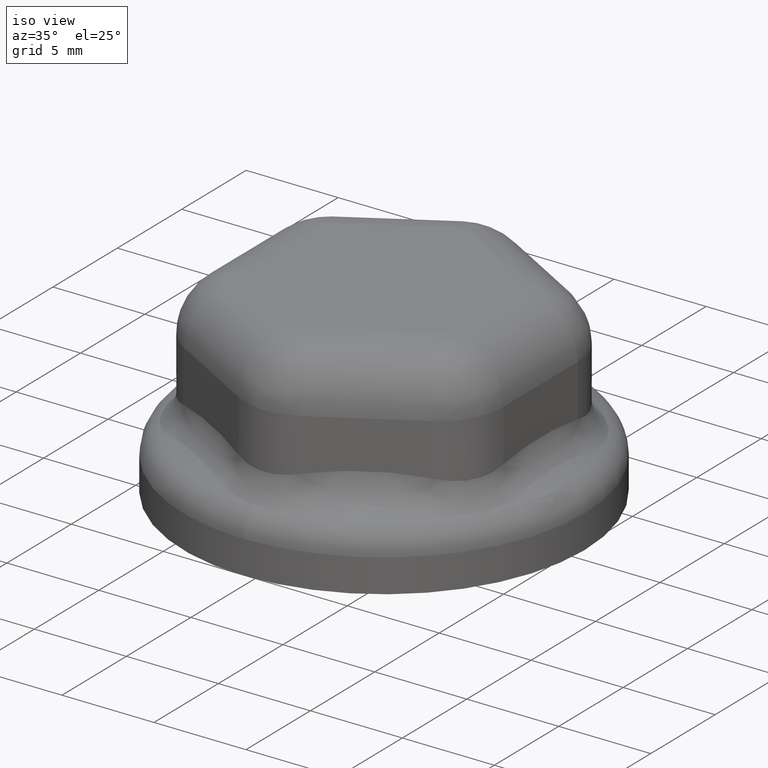
[diagram: clean part render]
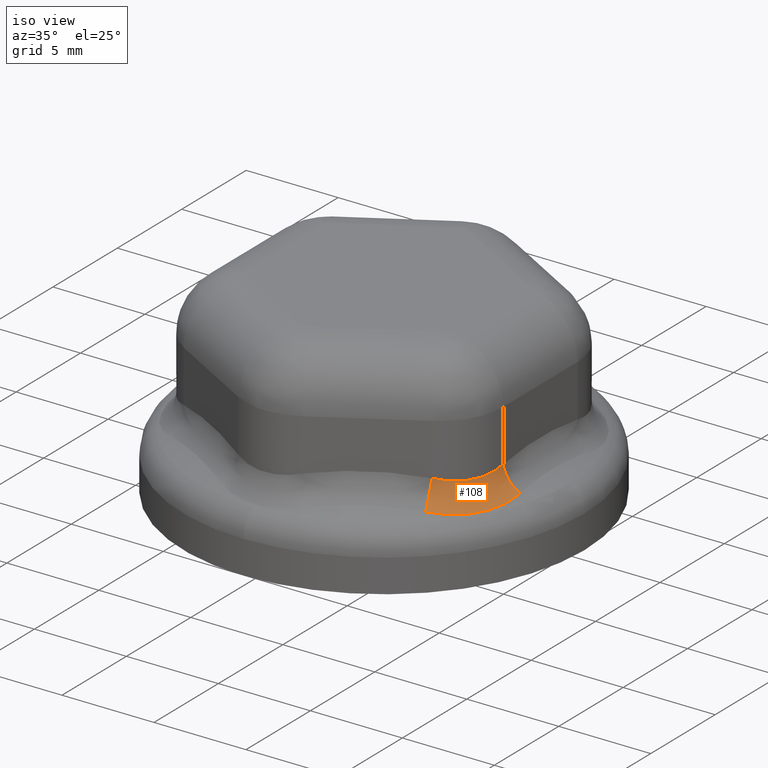
[diagram: same view with one face highlighted and labeled with its STEP entity id]
A machine part, iso view. The second image highlights one B-rep face of the part: STEP entity #108.
In plain terms, the highlighted face is a freeform B-spline surface patch.
Its self-contained STEP definition (entity closure, byte-faithful):
#108 = ADVANCED_FACE( '', ( #224 ), #225, .F. );
#224 = FACE_OUTER_BOUND( '', #1662, .T. );
#225 = ( B_SPLINE_SURFACE( 3, 2, ( ( #1664, #1665, #1666 ), ( #1667, #1668, #1669 ), ( #1670, #1671, #1672 ), ( #1673, #1674, #1675 ), ( #1676, #1677, #1678 ), ( #1679, #1680, #1681 ), ( #1682, #1683, #1684 ), ( #1685, #1686, #1687 ), ( #1688, #1689, #1690 ), ( #1691, #1692, #1693 ), ( #1694, #1695, #1696 ), ( #1697, #1698, #1699 ), ( #1700, #1701, #1702 ), ( #1703, #1704, #1705 ), ( #1706, #1707, #1708 ), ( #1709, #1710, #1711 ), ( #1712, #1713, #1714 ), ( #1715, #1716, #1717 ), ( #1718, #1719, #1720 ), ( #1721, #1722, #1723 ), ( #1724, #1725, #1726 ), ( #1727, #1728, #1729 ), ( #1730, #1731, #1732 ), ( #1733, #1734, #1735 ), ( #1736, #1737, #1738 ), ( #1739, #1740, #1741 ), ( #1742, #1743, #1744 ), ( #1745, #1746, #1747 ), ( #1748, #1749, #1750 ), ( #1751, #1752, #1753 ), ( #1754, #1755, #1756 ), ( #1757, #1758, #1759 ), ( #1760, #1761, #1762 ), ( #1763, #1764, #1765 ), ( #1766, #1767, #1768 ), ( #1769, #1770, #1771 ), ( #1772, #1773, #1774 ), ( #1775, #1776, #1777 ), ( #1778, #1779, #1780 ), ( #1781, #1782, #1783 ), ( #1784, #1785, #1786 ), ( #1787, #1788, #1789 ), ( #1790, #1791, #1792 ), ( #1793, #1794, #1795 ), ( #1796, #1797, #1798 ), ( #1799, #1800, #1801 ) ), .UNSPECIFIED., .F., .F., .F. )B_SPLINE_SURFACE_WITH_KNOTS( ( 4, 2, 2, 2, 2, 2, 2, 2, 2, 2, 2, 2, 2, 2, 2, 2, 2, 2, 2, 2, 2, 2, 4 ), ( 3, 3 ), ( 0.000000000000000, 0.000326902975604219, 0.000653805951208438, 0.000980708926812657, 0.00130761190241688, 0.00147106339021899, 0.00155278913412004, 0.00163451487802110, 0.00196141785362531, 0.00228832082922953, 0.00261522380483375, 0.00294212678043797, 0.00310557826824008, 0.00318730401214114, 0.00326902975604219, 0.00359593273164641, 0.00392283570725063, 0.00424973868285485, 0.00457664165845907, 0.00474009314626118, 0.00482181889016223, 0.00490354463406329, 0.00523044760966751 ), ( 0.000000000000000, 1.00000000000000 ), .UNSPECIFIED. )RATIONAL_B_SPLINE_SURFACE( ( ( 1.00000000000000, 0.860344251278307, 1.00000000000000 ), ( 1.00000000000000, 0.860817759129277, 1.00000000000000 ), ( 1.00000000000000, 0.861259781798135, 1.00000000000000 ), ( 1.00000000000000, 0.862083753485301, 1.00000000000000 ), ( 1.00000000000000, 0.862465716101235, 1.00000000000000 ), ( 1.00000000000000, 0.863171533955672, 1.00000000000000 ), ( 1.00000000000000, 0.863495387396867, 1.00000000000000 ), ( 1.00000000000000, 0.864085946165225, 1.00000000000000 ), ( 1.00000000000000, 0.864352651855852, 1.00000000000000 ), ( 1.00000000000000, 0.864709855731947, 1.00000000000000 ), ( 1.00000000000000, 0.864821773778098, 1.00000000000000 ), ( 1.00000000000000, 0.864978857331487, 1.00000000000000 ), ( 1.00000000000000, 0.865029419104583, 1.00000000000000 ), ( 1.00000000000000, 0.865126926309432, 1.00000000000000 ), ( 1.00000000000000, 0.865173906096101, 1.00000000000000 ), ( 1.00000000000000, 0.865399303533487, 1.00000000000000 ), ( 1.00000000000000, 0.865548493251638, 1.00000000000000 ), ( 1.00000000000000, 0.865786758215794, 1.00000000000000 ), ( 1.00000000000000, 0.865875829863395, 1.00000000000000 ), ( 1.00000000000000, 0.865994906314140, 1.00000000000000 ), ( 1.00000000000000, 0.866024910023349, 1.00000000000000 ), ( 1.00000000000000, 0.866025885474082, 1.00000000000000 ), ( 1.00000000000000, 0.865996858463186, 1.00000000000000 ), ( 1.00000000000000, 0.865908308615247, 1.00000000000000 ), ( 1.00000000000000, 0.865871282391258, 1.00000000000000 ), ( 1.00000000000000, 0.865804310806785, 1.00000000000000 ), ( 1.00000000000000, 0.865780081031131, 1.00000000000000 ), ( 1.00000000000000, 0.865727774958140, 1.00000000000000 ), ( 1.00000000000000, 0.865699667835001, 1.00000000000000 ), ( 1.00000000000000, 0.865549878255624, 1.00000000000000 ), ( 1.00000000000000, 0.865400541375328, 1.00000000000000 ), ( 1.00000000000000, 0.865043945464465, 1.00000000000000 ), ( 1.00000000000000, 0.864836683857265, 1.00000000000000 ), ( 1.00000000000000, 0.864364303929016, 1.00000000000000 ), ( 1.00000000000000, 0.864099185380047, 1.00000000000000 ), ( 1.00000000000000, 0.863510185491763, 1.00000000000000 ), ( 1.00000000000000, 0.863186306159866, 1.00000000000000 ), ( 1.00000000000000, 0.862654986965909, 1.00000000000000 ), ( 1.00000000000000, 0.862470289218035, 1.00000000000000 ), ( 1.00000000000000, 0.862181600935965, 1.00000000000000 ), ( 1.00000000000000, 0.862083430690163, 1.00000000000000 ), ( 1.00000000000000, 0.861883159326538, 1.00000000000000 ), ( 1.00000000000000, 0.861781066793416, 1.00000000000000 ), ( 1.00000000000000, 0.861261897072243, 1.00000000000000 ), ( 1.00000000000000, 0.860817795876984, 1.00000000000000 ), ( 1.00000000000000, 0.860344251278307, 1.00000000000000 ) ) )BOUNDED_SURFACE(  )REPRESENTATION_ITEM( '' )GEOMETRIC_REPRESENTATION_ITEM(  )SURFACE(  ) );
#1662 = EDGE_LOOP( '', ( #3053, #3054, #3055, #3056 ) );
#1664 = CARTESIAN_POINT( '', ( 6.74999999999999, -5.91784025919367, 4.68194201974693 ) );
#1665 = CARTESIAN_POINT( '', ( 6.62831257506006, -5.98809652673973, 3.80444151934667 ) );
#1666 = CARTESIAN_POINT( '', ( 6.95956748090783, -6.69684693090917, 3.38290391407027 ) );
#1667 = CARTESIAN_POINT( '', ( 6.81614849774707, -5.87964940621291, 4.66446936070568 ) );
#1668 = CARTESIAN_POINT( '', ( 6.70108180024256, -5.94962403229793, 3.78793478274632 ) );
#1669 = CARTESIAN_POINT( '', ( 7.04882747119689, -6.64773194365119, 3.36543124405842 ) );
#1670 = CARTESIAN_POINT( '', ( 6.88077382899320, -5.83945392979039, 4.64813453464661 ) );
#1671 = CARTESIAN_POINT( '', ( 6.77219197889828, -5.90876691601748, 3.77249923223320 ) );
#1672 = CARTESIAN_POINT( '', ( 7.13601143345787, -6.59581370495289, 3.34909642893853 ) );
#1673 = CARTESIAN_POINT( '', ( 7.00702932595420, -5.75512998713453, 4.61764860798423 ) );
#1674 = CARTESIAN_POINT( '', ( 6.91110965451999, -5.82240015957803, 3.74368635429848 ) );
#1675 = CARTESIAN_POINT( '', ( 7.30628208949262, -6.48649463751692, 3.31861050233899 ) );
#1676 = CARTESIAN_POINT( '', ( 7.06865963225123, -5.71100130058671, 4.60349757373800 ) );
#1677 = CARTESIAN_POINT( '', ( 6.97891730649721, -5.77689027685316, 3.73030909596568 ) );
#1678 = CARTESIAN_POINT( '', ( 7.38936893466522, -6.42909352360661, 3.30445946801280 ) );
#1679 = CARTESIAN_POINT( '', ( 7.18893990622500, -5.61883526986363, 4.57732287673632 ) );
#1680 = CARTESIAN_POINT( '', ( 7.11120770905940, -5.68127541619386, 3.70556183283627 ) );
#1681 = CARTESIAN_POINT( '', ( 7.55145072909113, -6.30886058148226, 3.27828477110821 ) );
#1682 = CARTESIAN_POINT( '', ( 7.24758988330089, -5.57079793164275, 4.56529925899829 ) );
#1683 = CARTESIAN_POINT( '', ( 7.17569051315540, -5.63117041114139, 3.69419186740572 ) );
#1684 = CARTESIAN_POINT( '', ( 7.63044570875279, -6.24602873893344, 3.26626115325513 ) );
#1685 = CARTESIAN_POINT( '', ( 7.36188706963415, -5.47079001206566, 4.54335631388915 ) );
#1686 = CARTESIAN_POINT( '', ( 7.30126937677346, -5.52636750653290, 3.67343923068026 ) );
#1687 = CARTESIAN_POINT( '', ( 7.78429849023936, -6.11491862728954, 3.24431820827900 ) );
#1688 = CARTESIAN_POINT( '', ( 7.41753436802800, -5.41881954324556, 4.53343695864067 ) );
#1689 = CARTESIAN_POINT( '', ( 7.36236557674954, -5.47166969754393, 3.66405653089966 ) );
#1690 = CARTESIAN_POINT( '', ( 7.85915643246742, -6.04664049001375, 3.23439885287845 ) );
#1691 = CARTESIAN_POINT( '', ( 7.49870769409008, -5.33785728074276, 4.52014352030107 ) );
#1692 = CARTESIAN_POINT( '', ( 7.45139184952040, -5.38613769126423, 3.65148106247007 ) );
#1693 = CARTESIAN_POINT( '', ( 7.96826695805743, -5.94007449524919, 3.22110541466719 ) );
#1694 = CARTESIAN_POINT( '', ( 7.52538222472492, -5.31036835812636, 4.51597689990578 ) );
#1695 = CARTESIAN_POINT( '', ( 7.48063059410378, -5.35704569149539, 3.64753924645035 ) );
#1696 = CARTESIAN_POINT( '', ( 8.00410731039094, -5.90386047621224, 3.21693879418128 ) );
#1697 = CARTESIAN_POINT( '', ( 7.56481051731481, -5.26837174201053, 4.51012711410364 ) );
#1698 = CARTESIAN_POINT( '', ( 7.52382062416338, -5.31252636905969, 3.64200482674603 ) );
#1699 = CARTESIAN_POINT( '', ( 8.05705982927451, -5.84848813412461, 3.21108900845090 ) );
#1700 = CARTESIAN_POINT( '', ( 7.57785600973504, -5.25424563657815, 4.50824389358100 ) );
#1701 = CARTESIAN_POINT( '', ( 7.53810592925932, -5.29753967755854, 3.64022308709175 ) );
#1702 = CARTESIAN_POINT( '', ( 8.07457597137437, -5.82985543014629, 3.20920578787910 ) );
#1703 = CARTESIAN_POINT( '', ( 7.60375074847628, -5.22573678046925, 4.50461164225059 ) );
#1704 = CARTESIAN_POINT( '', ( 7.56645131744357, -5.26727052859319, 3.63678649147564 ) );
#1705 = CARTESIAN_POINT( '', ( 8.10933628054102, -5.79223682448380, 3.20557353659917 ) );
#1706 = CARTESIAN_POINT( '', ( 7.61660977715747, -5.21134285114645, 4.50286133126659 ) );
#1707 = CARTESIAN_POINT( '', ( 7.58052209978778, -5.25197618249245, 3.63513042423385 ) );
#1708 = CARTESIAN_POINT( '', ( 8.12659357194346, -5.77323615984487, 3.20382322559983 ) );
#1709 = CARTESIAN_POINT( '', ( 7.68029399826535, -5.13885754996303, 4.49446269707401 ) );
#1710 = CARTESIAN_POINT( '', ( 7.65017981163313, -5.17489995213819, 3.62718384656824 ) );
#1711 = CARTESIAN_POINT( '', ( 8.21203792340717, -5.67751665587022, 3.19542459135779 ) );
#1712 = CARTESIAN_POINT( '', ( 7.72906013238822, -5.07948766016363, 4.48890021037450 ) );
#1713 = CARTESIAN_POINT( '', ( 7.70343071207383, -5.11159052395510, 3.62192024631165 ) );
#1714 = CARTESIAN_POINT( '', ( 8.27739520579754, -5.59900410998245, 3.18986210471829 ) );
#1715 = CARTESIAN_POINT( '', ( 7.82233540233034, -4.95805157204357, 4.48001427739647 ) );
#1716 = CARTESIAN_POINT( '', ( 7.80507049700030, -4.98179329719877, 3.61351143435321 ) );
#1717 = CARTESIAN_POINT( '', ( 8.40224483414909, -5.43821935219863, 3.18097617169935 ) );
#1718 = CARTESIAN_POINT( '', ( 7.86684437075927, -4.89598526748672, 4.47669095273989 ) );
#1719 = CARTESIAN_POINT( '', ( 7.85345923159529, -4.91530532765249, 3.61036633588085 ) );
#1720 = CARTESIAN_POINT( '', ( 8.46173696714533, -5.35594696504101, 3.17765284706518 ) );
#1721 = CARTESIAN_POINT( '', ( 7.95165293513348, -4.76918661658385, 4.47224774293267 ) );
#1722 = CARTESIAN_POINT( '', ( 7.94540077176481, -4.77922660380111, 3.60616135326939 ) );
#1723 = CARTESIAN_POINT( '', ( 8.57490906908678, -5.18770511193066, 3.17320963725406 ) );
#1724 = CARTESIAN_POINT( '', ( 7.99195248726132, -4.70445424238468, 4.47112789365303 ) );
#1725 = CARTESIAN_POINT( '', ( 7.98895356016402, -4.70963576972308, 3.60510150234646 ) );
#1726 = CARTESIAN_POINT( '', ( 8.62858899346984, -5.10173558126758, 3.17208978795977 ) );
#1727 = CARTESIAN_POINT( '', ( 8.06833570198255, -4.57231935872075, 4.47109148933700 ) );
#1728 = CARTESIAN_POINT( '', ( 8.07118989672411, -4.56738820305180, 3.60506704893181 ) );
#1729 = CARTESIAN_POINT( '', ( 8.73011533495742, -4.92611451784490, 3.17205338367695 ) );
#1730 = CARTESIAN_POINT( '', ( 8.10441943755579, -4.50491689557112, 4.47217488976051 ) );
#1731 = CARTESIAN_POINT( '', ( 8.10987355635546, -4.49473147202921, 3.60609240458714 ) );
#1732 = CARTESIAN_POINT( '', ( 8.77796186837688, -4.83646302220993, 3.17313678404849 ) );
#1733 = CARTESIAN_POINT( '', ( 8.15533729354666, -4.40178154746850, 4.47547904809691 ) );
#1734 = CARTESIAN_POINT( '', ( 8.16417653176354, -4.38344644383471, 3.60921940948742 ) );
#1735 = CARTESIAN_POINT( '', ( 8.84528413615984, -4.69920024434426, 3.17644094243793 ) );
#1736 = CARTESIAN_POINT( '', ( 8.17177485386358, -4.36706421397980, 4.47686055952312 ) );
#1737 = CARTESIAN_POINT( '', ( 8.18165661917522, -4.34596781853749, 3.61052683756009 ) );
#1738 = CARTESIAN_POINT( '', ( 8.86698303825647, -4.65298135745725, 3.17782245382395 ) );
#1739 = CARTESIAN_POINT( '', ( 8.19561879191248, -4.31447366295910, 4.47935899957703 ) );
#1740 = CARTESIAN_POINT( '', ( 8.20693196017184, -4.28917167971625, 3.61289124217493 ) );
#1741 = CARTESIAN_POINT( '', ( 8.89840390056310, -4.58294960654302, 3.18032089391163 ) );
#1742 = CARTESIAN_POINT( '', ( 8.20343134162757, -4.29685770231215, 4.48026286065289 ) );
#1743 = CARTESIAN_POINT( '', ( 8.21519957603085, -4.27014324748026, 3.61374660517458 ) );
#1744 = CARTESIAN_POINT( '', ( 8.90868956595590, -4.55948842818818, 3.18122475496373 ) );
#1745 = CARTESIAN_POINT( '', ( 8.21878358509109, -4.26145296052787, 4.48221391124446 ) );
#1746 = CARTESIAN_POINT( '', ( 8.23141716309326, -4.23189291259175, 3.61559294517882 ) );
#1747 = CARTESIAN_POINT( '', ( 8.92888203258432, -4.51233016385752, 3.18317580558031 ) );
#1748 = CARTESIAN_POINT( '', ( 8.22633046582558, -4.24364654066467, 4.48326225035083 ) );
#1749 = CARTESIAN_POINT( '', ( 8.23937468739607, -4.21265194510429, 3.61658501004248 ) );
#1750 = CARTESIAN_POINT( '', ( 8.93879826034192, -4.48860957626336, 3.18422414469712 ) );
#1751 = CARTESIAN_POINT( '', ( 8.26326767440856, -4.15444594312329, 4.48884857570206 ) );
#1752 = CARTESIAN_POINT( '', ( 8.27824580320032, -4.11624998403587, 3.62187138680127 ) );
#1753 = CARTESIAN_POINT( '', ( 8.98728041679040, -4.36976877624036, 3.18981046993360 ) );
#1754 = CARTESIAN_POINT( '', ( 8.29027913060655, -4.08254079060596, 4.49441653027924 ) );
#1755 = CARTESIAN_POINT( '', ( 8.30642402988256, -4.03849194608416, 3.62714015830965 ) );
#1756 = CARTESIAN_POINT( '', ( 9.02256666775692, -4.27392788087949, 3.19537842467398 ) );
#1757 = CARTESIAN_POINT( '', ( 8.33937284115451, -3.93767388401633, 4.50770389442071 ) );
#1758 = CARTESIAN_POINT( '', ( 8.35709490730525, -3.88178726914441, 3.63971234267822 ) );
#1759 = CARTESIAN_POINT( '', ( 9.08633270310492, -4.08077750205235, 3.20866578867265 ) );
#1760 = CARTESIAN_POINT( '', ( 8.36145484059836, -3.86471207477871, 4.51542340525740 ) );
#1761 = CARTESIAN_POINT( '', ( 8.37958729088094, -3.80284051138405, 3.64701585213326 ) );
#1762 = CARTESIAN_POINT( '', ( 9.11481215013693, -3.98346791265653, 3.21638529963317 ) );
#1763 = CARTESIAN_POINT( '', ( 8.40076852722673, -3.71775029705525, 4.53300348890858 ) );
#1764 = CARTESIAN_POINT( '', ( 8.41896293452281, -3.64382539802877, 3.66364649717190 ) );
#1765 = CARTESIAN_POINT( '', ( 9.16506353230430, -3.78742732916247, 3.23396538317949 ) );
#1766 = CARTESIAN_POINT( '', ( 8.41800010756912, -3.64375030401029, 4.54286408196851 ) );
#1767 = CARTESIAN_POINT( '', ( 8.43584608914643, -3.56375696151753, 3.67297365364368 ) );
#1768 = CARTESIAN_POINT( '', ( 9.18683533237424, -3.68869627423562, 3.24382597632627 ) );
#1769 = CARTESIAN_POINT( '', ( 8.44762949380233, -3.49471765366096, 4.56474971529708 ) );
#1770 = CARTESIAN_POINT( '', ( 8.46401079327825, -3.40255142560222, 3.69367217840781 ) );
#1771 = CARTESIAN_POINT( '', ( 9.22368492106055, -3.48984197480515, 3.26571160958601 ) );
#1772 = CARTESIAN_POINT( '', ( 8.46002732419320, -3.41968499877308, 4.57677470008350 ) );
#1773 = CARTESIAN_POINT( '', ( 8.47529238208385, -3.32141427346506, 3.70504349705187 ) );
#1774 = CARTESIAN_POINT( '', ( 9.23876275529587, -3.38971870657513, 3.27773659442377 ) );
#1775 = CARTESIAN_POINT( '', ( 8.47496527060026, -3.30635617044524, 4.59647878385145 ) );
#1776 = CARTESIAN_POINT( '', ( 8.48796820853311, -3.19893766554786, 3.72367310035067 ) );
#1777 = CARTESIAN_POINT( '', ( 9.25630599607428, -3.23849902439793, 3.29744067816633 ) );
#1778 = CARTESIAN_POINT( '', ( 8.47933430541740, -3.26844982101491, 4.60332485278585 ) );
#1779 = CARTESIAN_POINT( '', ( 8.49148518936044, -3.15798355953428, 3.73014532728735 ) );
#1780 = CARTESIAN_POINT( '', ( 9.26130749562114, -3.18791987160798, 3.30428674711331 ) );
#1781 = CARTESIAN_POINT( '', ( 8.48496379299876, -3.21139360316112, 4.61401901489043 ) );
#1782 = CARTESIAN_POINT( '', ( 8.49568756834310, -3.09636260433460, 3.74025455199618 ) );
#1783 = CARTESIAN_POINT( '', ( 9.26752758697623, -3.11179226531516, 3.31498090921171 ) );
#1784 = CARTESIAN_POINT( '', ( 8.48668624642230, -3.19234207512238, 4.61765459708556 ) );
#1785 = CARTESIAN_POINT( '', ( 8.49690947746168, -3.07579064794606, 3.74369112473588 ) );
#1786 = CARTESIAN_POINT( '', ( 9.26938721427022, -3.08637324225976, 3.31861649140989 ) );
#1787 = CARTESIAN_POINT( '', ( 8.48982123915477, -3.15417309804010, 4.62506904707984 ) );
#1788 = CARTESIAN_POINT( '', ( 8.49899331756406, -3.03458390703172, 3.75069937072736 ) );
#1789 = CARTESIAN_POINT( '', ( 9.27267632632963, -3.03544879096026, 3.32603094140219 ) );
#1790 = CARTESIAN_POINT( '', ( 8.49123336637253, -3.13505779799835, 4.62884759524344 ) );
#1791 = CARTESIAN_POINT( '', ( 8.49985485978266, -3.01395144923542, 3.75427074158404 ) );
#1792 = CARTESIAN_POINT( '', ( 9.27410530053155, -3.00994623126802, 3.32980948958749 ) );
#1793 = CARTESIAN_POINT( '', ( 8.49750191164565, -3.03954067698227, 4.64805644065857 ) );
#1794 = CARTESIAN_POINT( '', ( 8.50325147567707, -2.91087602426234, 3.77242544918397 ) );
#1795 = CARTESIAN_POINT( '', ( 9.28015670433014, -2.88251740257573, 3.34901833489910 ) );
#1796 = CARTESIAN_POINT( '', ( 8.49999999999999, -2.96313871172278, 4.66446806582950 ) );
#1797 = CARTESIAN_POINT( '', ( 8.50306668120936, -2.82850110985505, 3.78793356766958 ) );
#1798 = CARTESIAN_POINT( '', ( 9.28151863161209, -2.78060520946628, 3.36542995307538 ) );
#1799 = CARTESIAN_POINT( '', ( 8.49999999999999, -2.88675134594814, 4.68194201974693 ) );
#1800 = CARTESIAN_POINT( '', ( 8.50000000000000, -2.74623881085600, 3.80444151934667 ) );
#1801 = CARTESIAN_POINT( '', ( 9.27942330787711, -2.67873877236368, 3.38290391407027 ) );
#3053 = ORIENTED_EDGE( '', *, *, #3449, .T. );
#3054 = ORIENTED_EDGE( '', *, *, #3433, .F. );
#3055 = ORIENTED_EDGE( '', *, *, #3429, .F. );
#3056 = ORIENTED_EDGE( '', *, *, #3450, .F. );
#3429 = EDGE_CURVE( '', #3658, #3659, #3660, .T. );
#3433 = EDGE_CURVE( '', #3659, #3665, #3666, .T. );
#3449 = EDGE_CURVE( '', #3693, #3665, #3694, .T. );
#3450 = EDGE_CURVE( '', #3693, #3658, #3695, .T. );
#3658 = VERTEX_POINT( '', #4711 );
#3659 = VERTEX_POINT( '', #4712 );
#3660 = CIRCLE( '', #4713, 1.50000000000000 );
#3665 = VERTEX_POINT( '', #4772 );
#3666 = B_SPLINE_CURVE_WITH_KNOTS( '', 3, ( #4773, #4774, #4775, #4776, #4777, #4778, #4779, #4780, #4781, #4782, #4783, #4784, #4785, #4786, #4787, #4788, #4789, #4790, #4791, #4792, #4793, #4794, #4795, #4796, #4797, #4798, #4799, #4800, #4801, #4802, #4803, #4804, #4805 ), .UNSPECIFIED., .F., .F., ( 4, 2, 2, 1, 1, 1, 1, 1, 2, 2, 1, 1, 1, 1, 1, 1, 2, 2, 1, 1, 1, 1, 1, 1, 4 ), ( 0.000000000000000, 0.000308985075120032, 0.000386231343900040, 0.000463477612680047, 0.000617970150240063, 0.000926955225360095, 0.00123594030048013, 0.00154492537560016, 0.00185391045072019, 0.00189253358511020, 0.00193115671950020, 0.00200840298828021, 0.00216289552584022, 0.00247188060096026, 0.00278086567608030, 0.00308985075120033, 0.00339883582632037, 0.00343745896071037, 0.00347608209510038, 0.00355332836388039, 0.00370782090144041, 0.00401680597656044, 0.00432579105168047, 0.00463477612680051, 0.00494376120192054 ), .UNSPECIFIED. );
#3693 = VERTEX_POINT( '', #5060 );
#3694 = CIRCLE( '', #5061, 1.50000000000000 );
#3695 = B_SPLINE_CURVE_WITH_KNOTS( '', 3, ( #5062, #5063, #5064, #5065, #5066, #5067, #5068, #5069, #5070, #5071, #5072, #5073, #5074, #5075, #5076, #5077, #5078, #5079, #5080, #5081, #5082, #5083, #5084, #5085, #5086, #5087, #5088, #5089, #5090, #5091, #5092, #5093, #5094, #5095 ), .UNSPECIFIED., .F., .F., ( 4, 1, 1, 1, 2, 1, 2, 2, 1, 1, 1, 2, 1, 2, 2, 1, 1, 1, 2, 1, 2, 2, 4 ), ( 0.000000000000000, 0.000229758728052555, 0.000459517456105109, 0.000689276184157664, 0.000919034912210218, 0.00103391427623650, 0.00109135395824964, 0.00114879364026278, 0.00137855236831534, 0.00160831109636790, 0.00183806982442047, 0.00206782855247303, 0.00218270791649931, 0.00224014759851245, 0.00229758728052559, 0.00252734600857815, 0.00275710473663070, 0.00298686346468326, 0.00321662219273582, 0.00333150155676210, 0.00338894123877524, 0.00344638092078838, 0.00367613964884094 ), .UNSPECIFIED. );
#4711 = CARTESIAN_POINT( '', ( 8.49999999999999, -2.88675134594813, 4.68194201974693 ) );
#4712 = CARTESIAN_POINT( '', ( 9.27942330787711, -2.67873877236368, 3.38290391407027 ) );
#4713 = AXIS2_PLACEMENT_3D( '', #5512, #5513, #5514 );
#4772 = CARTESIAN_POINT( '', ( 6.95956748090783, -6.69684693090917, 3.38290391407027 ) );
#4773 = CARTESIAN_POINT( '', ( 9.27942330787711, -2.67873877236368, 3.38290391407027 ) );
#4774 = CARTESIAN_POINT( '', ( 9.28151268950710, -2.78031632409798, 3.36547950784287 ) );
#4775 = CARTESIAN_POINT( '', ( 9.28016578242851, -2.88199404575525, 3.34910198724279 ) );
#4776 = CARTESIAN_POINT( '', ( 9.27414402452226, -3.00921243376475, 3.32991893351044 ) );
#4777 = CARTESIAN_POINT( '', ( 9.27272144298197, -3.03467809450141, 3.32614455080930 ) );
#4778 = CARTESIAN_POINT( '', ( 9.26944600060375, -3.08553298588333, 3.31873747558855 ) );
#4779 = CARTESIAN_POINT( '', ( 9.26388916519879, -3.16168809572022, 3.30784095582933 ) );
#4780 = CARTESIAN_POINT( '', ( 9.24644448205429, -3.33849734091144, 3.28389772015125 ) );
#4781 = CARTESIAN_POINT( '', ( 9.20885994998829, -3.58857268771070, 3.25384125611582 ) );
#4782 = CARTESIAN_POINT( '', ( 9.14367206980145, -3.88467176102130, 3.22423820788724 ) );
#4783 = CARTESIAN_POINT( '', ( 9.05830056553661, -4.17675094343103, 3.20103639831883 ) );
#4784 = CARTESIAN_POINT( '', ( 8.98767978646345, -4.36873563509278, 3.18986519893124 ) );
#4785 = CARTESIAN_POINT( '', ( 8.94397309213212, -4.47593139870452, 3.18481936439759 ) );
#4786 = CARTESIAN_POINT( '', ( 8.93905874491887, -4.48783730021226, 3.18427566212143 ) );
#4787 = CARTESIAN_POINT( '', ( 8.92913372363107, -4.51159108592737, 3.18322441184519 ) );
#4788 = CARTESIAN_POINT( '', ( 8.91410349976908, -4.54713100476171, 3.18170186715728 ) );
#4789 = CARTESIAN_POINT( '', ( 8.87803842866120, -4.62942489972241, 3.17852766087978 ) );
#4790 = CARTESIAN_POINT( '', ( 8.80196131118791, -4.79150224702335, 3.17367897454338 ) );
#4791 = CARTESIAN_POINT( '', ( 8.68216168992187, -5.01596992576085, 3.17096704549796 ) );
#4792 = CARTESIAN_POINT( '', ( 8.52089050815621, -5.27419338919666, 3.17434032064277 ) );
#4793 = CARTESIAN_POINT( '', ( 8.34213840718820, -5.52129847424465, 3.18434067704811 ) );
#4794 = CARTESIAN_POINT( '', ( 8.21117655420370, -5.67853367678556, 3.19550078242819 ) );
#4795 = CARTESIAN_POINT( '', ( 8.13410629534374, -5.76481304549306, 3.20308590337790 ) );
#4796 = CARTESIAN_POINT( '', ( 8.12549606614212, -5.77436888200058, 3.20394685621444 ) );
#4797 = CARTESIAN_POINT( '', ( 8.10821784479991, -5.79337949874783, 3.20570147071146 ) );
#4798 = CARTESIAN_POINT( '', ( 8.08220015632363, -5.82175925906365, 3.20838379430635 ) );
#4799 = CARTESIAN_POINT( '', ( 8.02079336527341, -5.88703039252365, 3.21499403940289 ) );
#4800 = CARTESIAN_POINT( '', ( 7.89521127805707, -6.01381510729435, 3.22961123797197 ) );
#4801 = CARTESIAN_POINT( '', ( 7.70803779946289, -6.18438467826758, 3.25443881067766 ) );
#4802 = CARTESIAN_POINT( '', ( 7.47127939859904, -6.37255043652239, 3.29050083328948 ) );
#4803 = CARTESIAN_POINT( '', ( 7.22248580450782, -6.54433180039940, 3.33289195716386 ) );
#4804 = CARTESIAN_POINT( '', ( 7.04857145739414, -6.64787281496287, 3.36548135858073 ) );
#4805 = CARTESIAN_POINT( '', ( 6.95956748090783, -6.69684693090918, 3.38290391407027 ) );
#5060 = CARTESIAN_POINT( '', ( 6.74999999999999, -5.91784025919367, 4.68194201974693 ) );
#5061 = AXIS2_PLACEMENT_3D( '', #5525, #5526, #5527 );
#5062 = CARTESIAN_POINT( '', ( 6.74999999999999, -5.91784025919367, 4.68194201974693 ) );
#5063 = CARTESIAN_POINT( '', ( 6.81562528628467, -5.87995148249157, 4.66460756299481 ) );
#5064 = CARTESIAN_POINT( '', ( 6.94403084607186, -5.80013907666481, 4.63213803383032 ) );
#5065 = CARTESIAN_POINT( '', ( 7.12818131011239, -5.66846615029213, 4.58981041261570 ) );
#5066 = CARTESIAN_POINT( '', ( 7.30385023915286, -5.52484095304050, 4.55373656790125 ) );
#5067 = CARTESIAN_POINT( '', ( 7.41522467758236, -5.42102485330750, 4.53383767124153 ) );
#5068 = CARTESIAN_POINT( '', ( 7.49654442226442, -5.34006116351847, 4.52048723302767 ) );
#5069 = CARTESIAN_POINT( '', ( 7.53665107412327, -5.29880326713785, 4.51420583588693 ) );
#5070 = CARTESIAN_POINT( '', ( 7.57591240907119, -5.25636059478758, 4.50852213048741 ) );
#5071 = CARTESIAN_POINT( '', ( 7.60189673497322, -5.22779942574660, 4.50486686028234 ) );
#5072 = CARTESIAN_POINT( '', ( 7.61480262118773, -5.21337596899879, 4.50310500742914 ) );
#5073 = CARTESIAN_POINT( '', ( 7.67875476895210, -5.14069700578789, 4.49464600786410 ) );
#5074 = CARTESIAN_POINT( '', ( 7.77669933462887, -5.02161369390378, 4.48343859107604 ) );
#5075 = CARTESIAN_POINT( '', ( 7.91078875888696, -4.83479636866956, 4.47338981171805 ) );
#5076 = CARTESIAN_POINT( '', ( 8.03218674699012, -4.63987416866216, 4.46999939007371 ) );
#5077 = CARTESIAN_POINT( '', ( 8.10463904421534, -4.50451096274854, 4.47218053420144 ) );
#5078 = CARTESIAN_POINT( '', ( 8.15574958747386, -4.40092669388927, 4.47551017203678 ) );
#5079 = CARTESIAN_POINT( '', ( 8.18049702790911, -4.34861866939317, 4.47759886764647 ) );
#5080 = CARTESIAN_POINT( '', ( 8.20401731411176, -4.29552694502974, 4.48033275982222 ) );
#5081 = CARTESIAN_POINT( '', ( 8.21942263417347, -4.25995691696335, 4.48230007300620 ) );
#5082 = CARTESIAN_POINT( '', ( 8.22699565877818, -4.24206495826888, 4.48335734053847 ) );
#5083 = CARTESIAN_POINT( '', ( 8.26404137490414, -4.15247225323993, 4.48898897803070 ) );
#5084 = CARTESIAN_POINT( '', ( 8.31814157796003, -4.00815827343014, 4.50020714723171 ) );
#5085 = CARTESIAN_POINT( '', ( 8.38430220847430, -3.78889592287840, 4.52348348989783 ) );
#5086 = CARTESIAN_POINT( '', ( 8.43578940036962, -3.56691036905620, 4.55314429292021 ) );
#5087 = CARTESIAN_POINT( '', ( 8.46041532870088, -3.41712786614336, 4.57719855514393 ) );
#5088 = CARTESIAN_POINT( '', ( 8.47523335476347, -3.30411989412840, 4.59687846116959 ) );
#5089 = CARTESIAN_POINT( '', ( 8.48172880466127, -3.24744801410129, 4.60712860997271 ) );
#5090 = CARTESIAN_POINT( '', ( 8.48684471637712, -3.19052337620625, 4.61800412284151 ) );
#5091 = CARTESIAN_POINT( '', ( 8.48994727696676, -3.15251727018698, 4.62539482007617 ) );
#5092 = CARTESIAN_POINT( '', ( 8.49134394216818, -3.13349069116361, 4.62915952845318 ) );
#5093 = CARTESIAN_POINT( '', ( 8.49754085268157, -3.03845241942085, 4.64828881205202 ) );
#5094 = CARTESIAN_POINT( '', ( 8.50000000000000, -2.96254074912588, 4.66460485230573 ) );
#5095 = CARTESIAN_POINT( '', ( 8.49999999999999, -2.88675134594814, 4.68194201974693 ) );
#5512 = CARTESIAN_POINT( '', ( 9.99999999999999, -2.88675134594814, 4.68194201974693 ) );
#5513 = DIRECTION( '', ( -1.99838588395575E-015, -0.987420882906575, -0.158113883008421 ) );
#5514 = DIRECTION( '', ( 0.000000000000000, 0.158113883008421, -0.987420882906575 ) );
#5525 = CARTESIAN_POINT( '', ( 7.49999999999999, -7.21687836487033, 4.68194201974693 ) );
#5526 = DIRECTION( '', ( -0.855131568824354, -0.493710441453287, 0.158113883008418 ) );
#5527 = DIRECTION( '', ( 0.500000000000000, -0.866025403784439, -8.77708367144172E-018 ) );